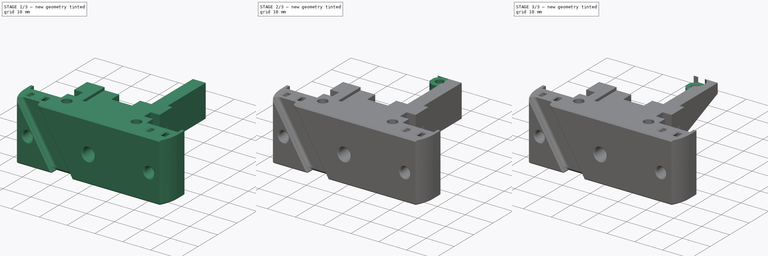
[diagram: build sequence overview — one tinted view per stage of 3, left to right]
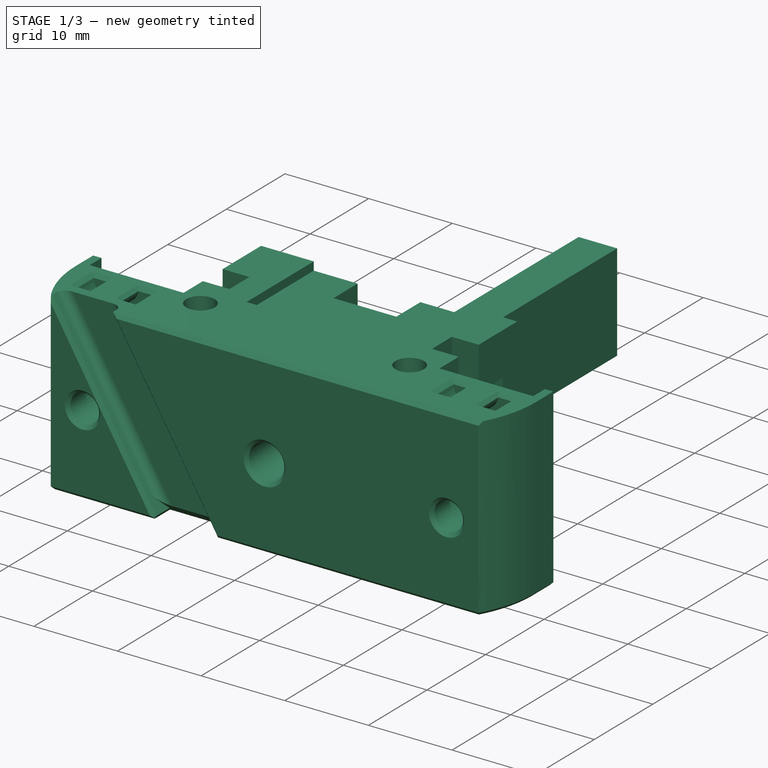
[diagram: stage 1 of 3 — iso view after this stage's code; geometry added in this stage tinted green]
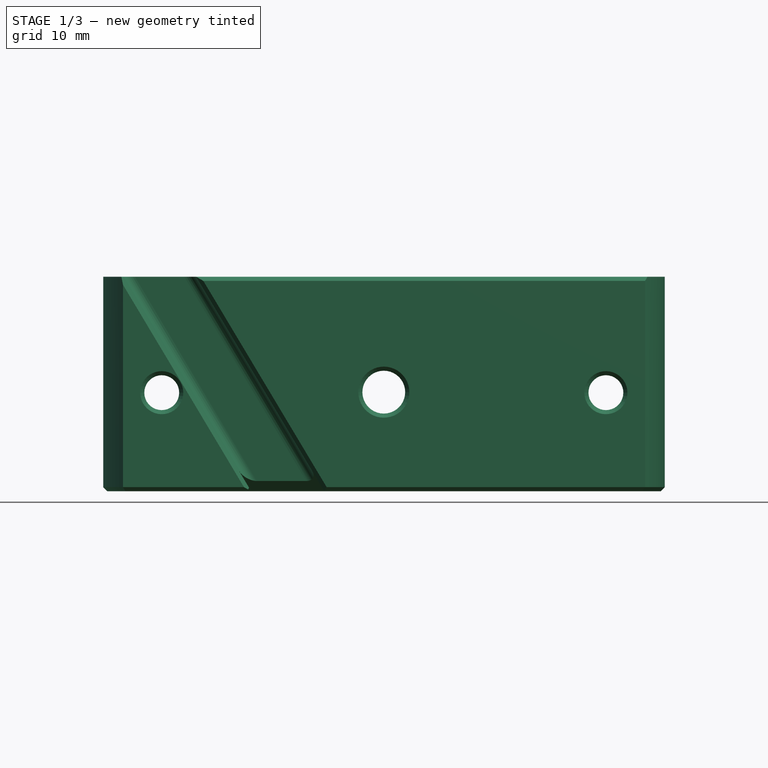
[diagram: stage 1 of 3 — front view after this stage's code; geometry added in this stage tinted green]
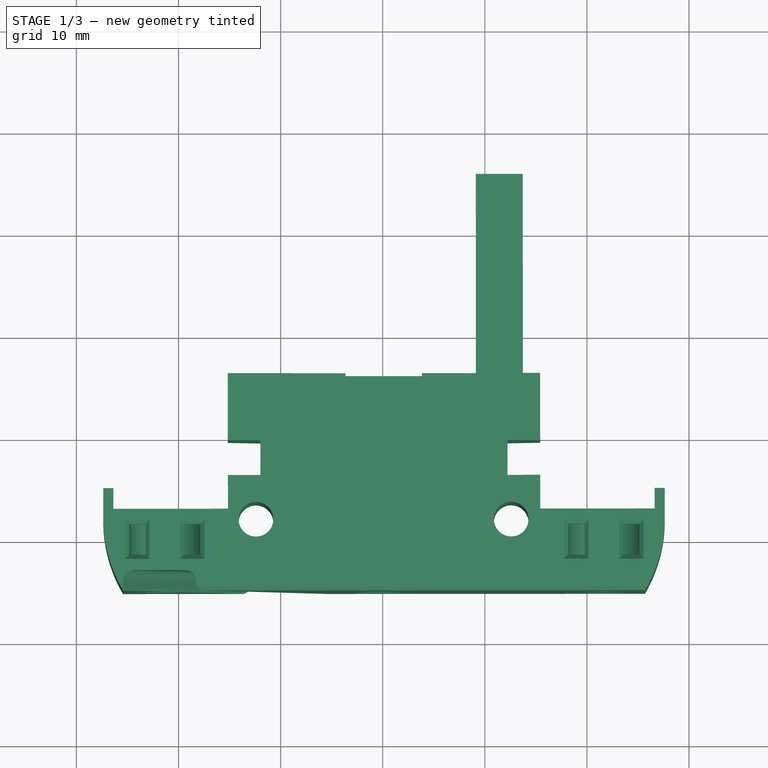
[diagram: stage 1 of 3 — top view after this stage's code; geometry added in this stage tinted green]
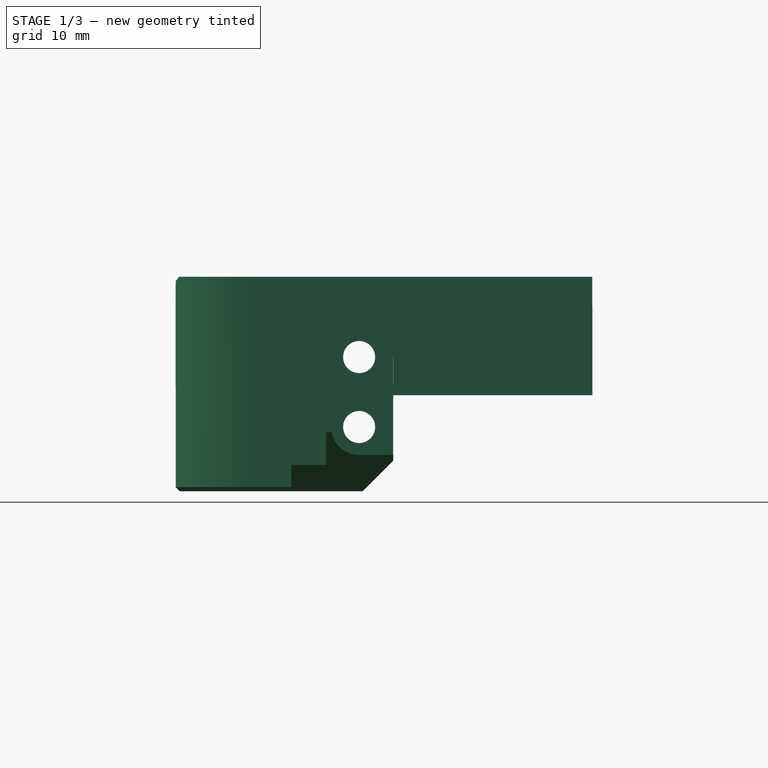
[diagram: stage 1 of 3 — right view after this stage's code; geometry added in this stage tinted green]
FCSTD DOCUMENT  (FreeCAD 1.0R39319 (Git))
Label: DragonBambu
License: All rights reserved
LicenseURL: https://en.wikipedia.org/wiki/All_rights_reserved
objects: Sketcher::SketchObject×5, PartDesign::Pocket×3, PartDesign::Pad×2, Part::Feature×1, Part::Refine×1, PartDesign::FeatureBase×1, PartDesign::Body×1
note: 30 computed .brp shape members not serialized (recipe doc carries the construction recipe); baked Part::Feature solids carry a one-line shape summary decoded from their .brp

FEATURE [Part::Feature] Bambu_Mount001
  shape: bbox 55 x 21.3 x 21 mm, 4954 faces, 0 solids (baked)
FEATURE [Part::Refine] Bambu_Mount002
  Source = -> Bambu_Mount001
FEATURE [PartDesign::FeatureBase] BaseFeature
  BaseFeature = -> Bambu_Mount002
  Suppressed = false
FEATURE [Sketcher::SketchObject] Sketch
  ArcFitTolerance = 1e-06
  AttachmentSupport = -> [BaseFeature]
  ExternalGeometry = -> [BaseFeature]
  FullyConstrained = true
  MakeInternals = false
  MapMode = 5
  Placement = pos=(0.0852624,-143.976,-0.00791922) rot=(-0.000209,0.707087,0.707126;3.14201rad)
  sketch-geometry (6):
    g0: LineSegment StartX=-339.042 StartY=21.009 StartZ=0 EndX=-343.642 EndY=21.009 EndZ=0
    g1: LineSegment StartX=-343.642 StartY=21.009 StartZ=0 EndX=-343.642 EndY=9.40899 EndZ=0
    g2: LineSegment StartX=-339.042 StartY=17.509 StartZ=0 EndX=-339.042 EndY=21.009 EndZ=0
    g3: LineSegment StartX=-343.642 StartY=9.40899 StartZ=0 EndX=-341.042 EndY=9.40899 EndZ=0
    g4: LineSegment StartX=-341.042 StartY=9.40899 StartZ=0 EndX=-341.042 EndY=17.509 EndZ=0
    g5: LineSegment StartX=-339.042 StartY=17.509 StartZ=0 EndX=-341.042 EndY=17.509 EndZ=0
  constraints (17):
    c: Coincident(g0,g1)
    c: Coincident(g2,g0)
    c: Horizontal(g0)
    c: Vertical(g1)
    c: Vertical(g2)
    c: Distance(g0) = 4.6
    c: Distance(g2) = 3.5
    c: Distance(g1) = 11.6
    c: Coincident(g3,g1)
    c: Horizontal(g3)
    c: Distance(g3) = 2.6
    c: Coincident(g4,g3)
    c: Vertical(g4)
    c: Horizontal(g5)
    c: Coincident(g4,g5)
    c: Coincident(g5,g2)
    c: Coincident(g0,g-3)
FEATURE [PartDesign::Pad] Pad  label="Arm"
  BaseFeature = -> BaseFeature
  Direction = (-0.000592199,1,5.50037e-05)
  Length = 19.5
  Length2 = 10
  Profile = -> Sketch
  ReferenceAxis = -> Sketch [N_Axis]
  Refine = true
  Suppressed = false
  Type = 0
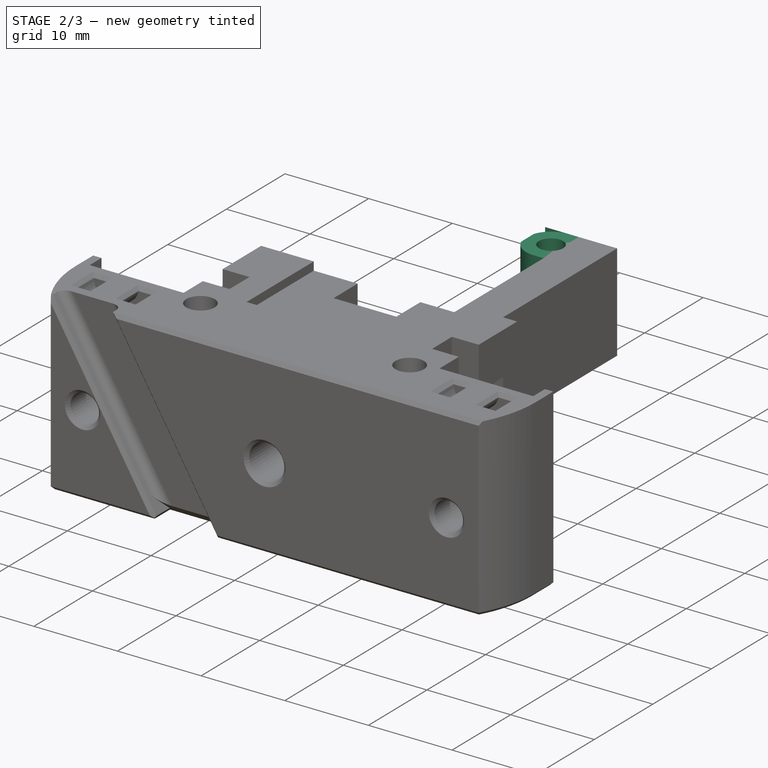
[diagram: stage 2 of 3 — iso view after this stage's code; geometry added in this stage tinted green]
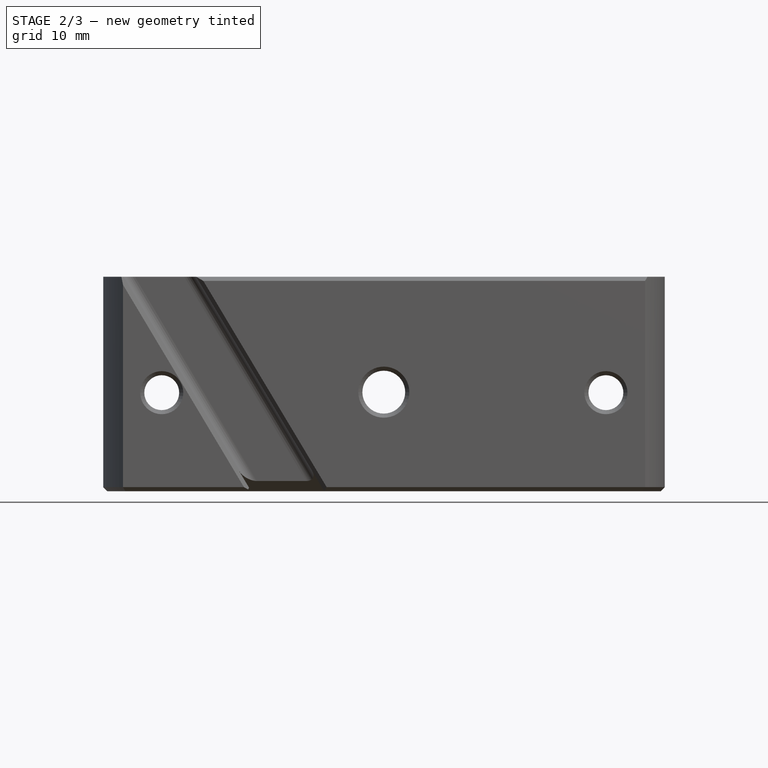
[diagram: stage 2 of 3 — front view after this stage's code; geometry added in this stage tinted green]
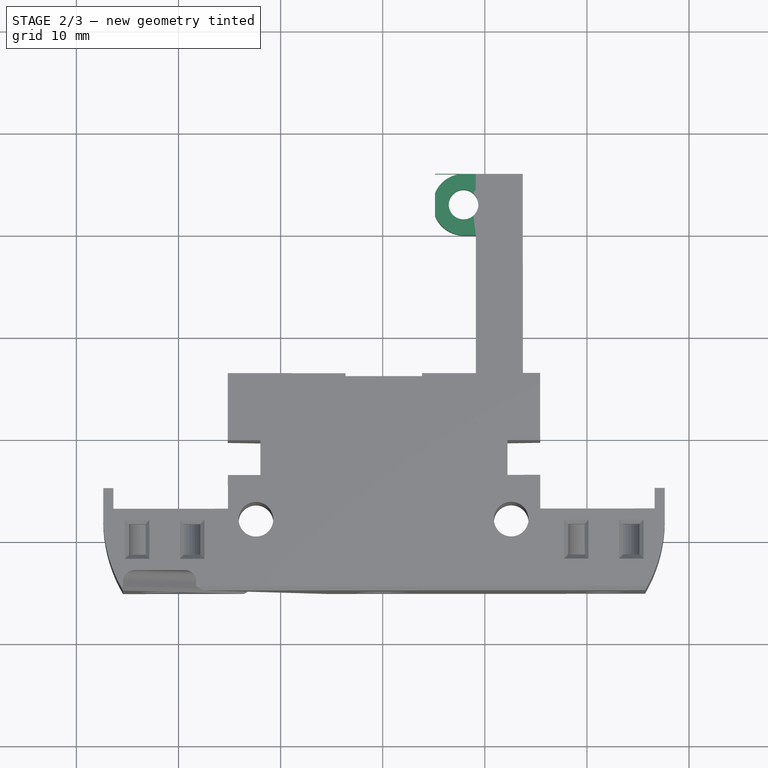
[diagram: stage 2 of 3 — top view after this stage's code; geometry added in this stage tinted green]
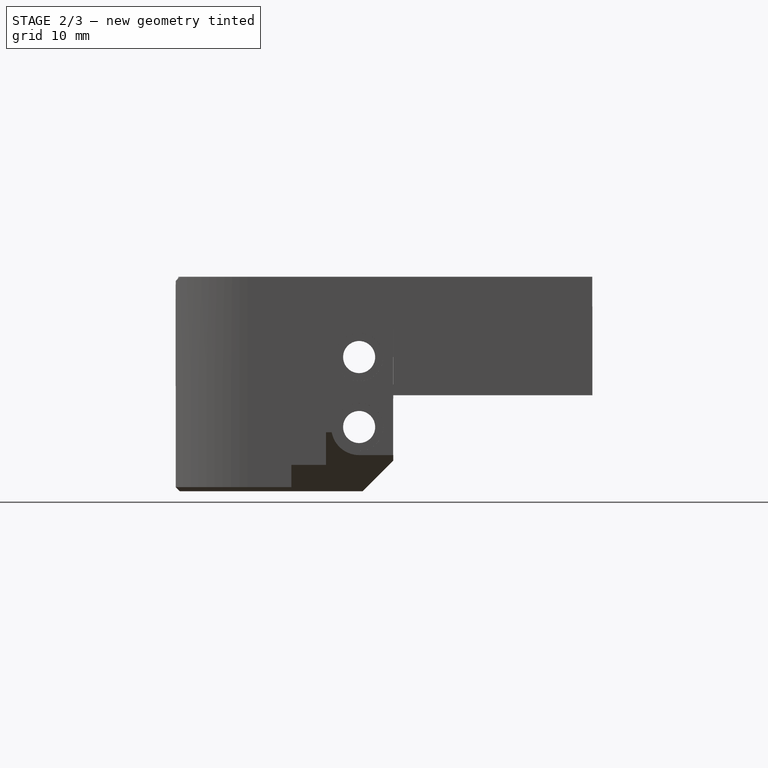
[diagram: stage 2 of 3 — right view after this stage's code; geometry added in this stage tinted green]
FEATURE [Sketcher::SketchObject] Sketch001
  ArcFitTolerance = 1e-06
  AttachmentSupport = -> [Pad]
  ExternalGeometry = -> [Pad]
  FullyConstrained = true
  MakeInternals = false
  MapMode = 5
  Placement = pos=(339.042,0.200781,1.10437e-05) rot=(0.577578,-0.577236,-0.577236;2.09405rad)
  sketch-geometry (4):
    g0: LineSegment StartX=124.477 StartY=21.0021 StartZ=0 EndX=124.477 EndY=17.5021 EndZ=0
    g1: LineSegment StartX=124.477 StartY=17.5021 StartZ=0 EndX=130.477 EndY=17.5021 EndZ=0
    g2: LineSegment StartX=130.477 StartY=17.5021 StartZ=0 EndX=130.477 EndY=21.0021 EndZ=0
    g3: LineSegment StartX=130.477 StartY=21.0021 StartZ=0 EndX=124.477 EndY=21.0021 EndZ=0
  constraints (10):
    c: Coincident(g0,g1)
    c: Coincident(g1,g2)
    c: Coincident(g2,g3)
    c: Coincident(g3,g0)
    c: Vertical(g2)
    c: Horizontal(g1)
    c: Horizontal(g3)
    c: Coincident(g0,g-3)
    c: Coincident(g0,g-3)
    c: Distance(g1) = 6
FEATURE [PartDesign::Pad] Pad001  label="Screw Access"
  BaseFeature = -> Pad
  Direction = (-1,-0.000592199,-3.25732e-08)
  Length = 4
  Length2 = 10
  Profile = -> Sketch001
  ReferenceAxis = -> Sketch001 [N_Axis]
  Refine = true
  Suppressed = false
  Type = 0
FEATURE [Sketcher::SketchObject] Sketch002
  ArcFitTolerance = 1e-06
  AttachmentSupport = -> [Pad001]
  ExternalGeometry = -> [Pad001]
  FullyConstrained = true
  MakeInternals = false
  MapMode = 5
  Placement = pos=(-6.84107e-07,9e-16,21.0021) rot=(0,-0.844705,0;0rad)
  sketch-geometry (8):
    g0: Circle CenterX=337.916 CenterY=-127.277 CenterZ=0 NormalX=0 NormalY=0 NormalZ=1 AngleXU=0 Radius=1.45
    g1: LineSegment [constr] StartX=337.916 StartY=-127.277 StartZ=0 EndX=339.116 EndY=-124.276 EndZ=0
    g2: LineSegment [constr] StartX=337.916 StartY=-127.277 StartZ=0 EndX=339.12 EndY=-130.276 EndZ=0
    g3: ArcOfCircle CenterX=337.916 CenterY=-127.277 CenterZ=0 NormalX=0 NormalY=0 NormalZ=1 AngleXU=0 Radius=2.9999 StartAngle=1.57198 EndAngle=4.71239
    g4: LineSegment [constr] StartX=337.916 StartY=-127.277 StartZ=0 EndX=337.916 EndY=-130.277 EndZ=0
    g5: LineSegment StartX=337.912 StartY=-124.277 StartZ=0 EndX=334.916 EndY=-124.281 EndZ=0
    g6: LineSegment StartX=337.916 StartY=-130.277 StartZ=0 EndX=334.916 EndY=-130.277 EndZ=0
    g7: LineSegment StartX=334.916 StartY=-130.277 StartZ=0 EndX=334.916 EndY=-124.281 EndZ=0
  constraints (20):
    c: Coincident(g1,g0)
    c: Coincident(g1,g-3)
    c: Coincident(g2,g0)
    c: Coincident(g2,g-3)
    c: Equal(g2,g1)
    c: DistanceX(g0,g1) = 1.2
    c: Diameter(g0) = 2.9
    c: Coincident(g3,g0)
    c: PointOnObject(g3,g-4)
    c: Coincident(g4,g0)
    c: Vertical(g4)
    c: PointOnObject(g4,g-5)
    c: Coincident(g3,g4)
    c: Tangent(g5,g3) = -1.5708
    c: Horizontal(g6)
    c: Coincident(g7,g6)
    c: Vertical(g7)
    c: Coincident(g7,g5)
    c: Tangent(g7,g3)
    c: Coincident(g6,g3)
FEATURE [PartDesign::Pocket] Pocket  label="Screw Hole"
  BaseFeature = -> Pad001
  Direction = (3.25732e-08,0,-1)
  Length = 20
  Length2 = 5
  Profile = -> Sketch002
  ReferenceAxis = -> Sketch002 [N_Axis]
  Refine = true
  Suppressed = false
  Type = 1
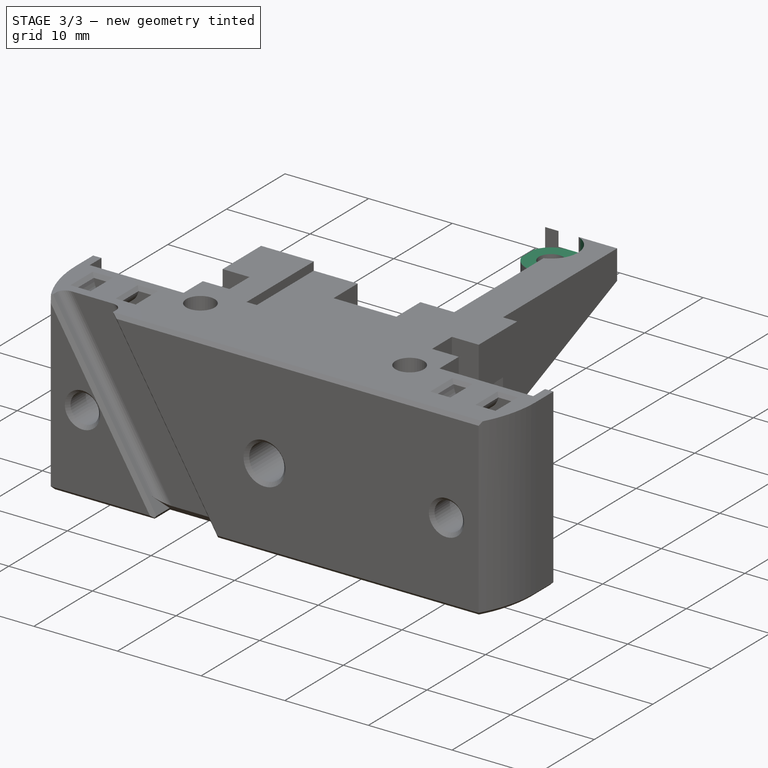
[diagram: stage 3 of 3 — iso view after this stage's code; geometry added in this stage tinted green]
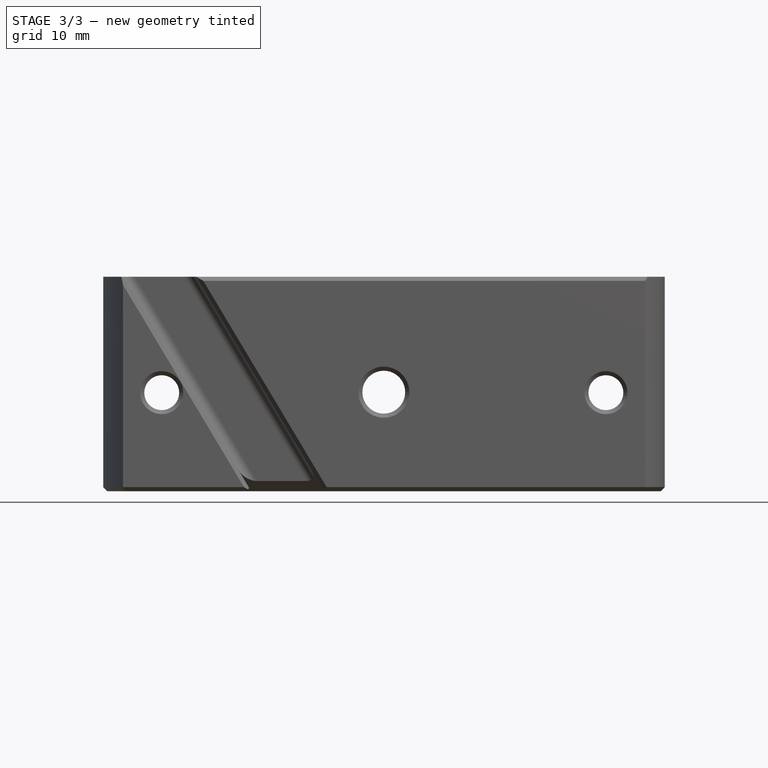
[diagram: stage 3 of 3 — front view after this stage's code; geometry added in this stage tinted green]
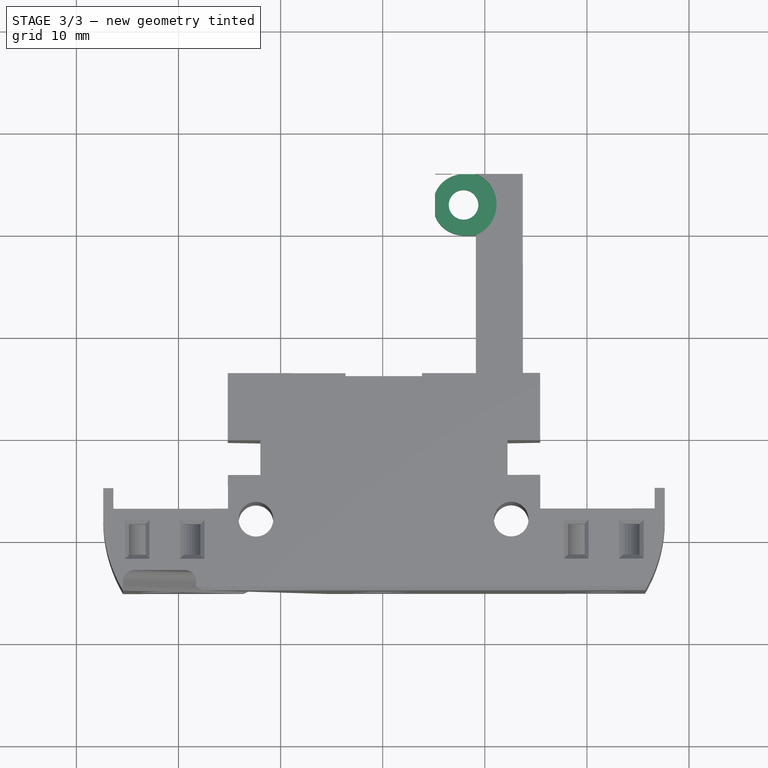
[diagram: stage 3 of 3 — top view after this stage's code; geometry added in this stage tinted green]
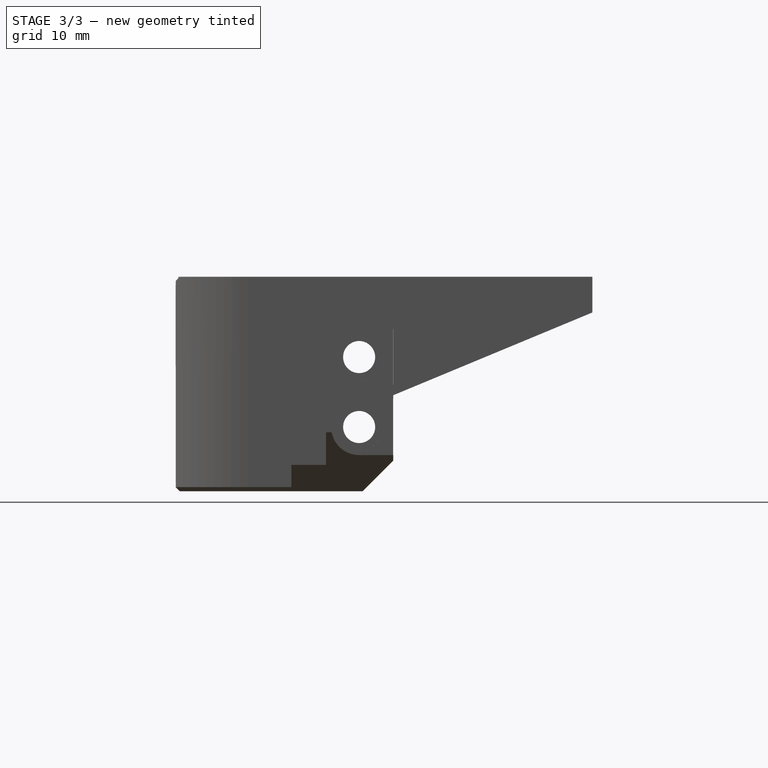
[diagram: stage 3 of 3 — right view after this stage's code; geometry added in this stage tinted green]
FEATURE [Sketcher::SketchObject] Sketch003
  ArcFitTolerance = 1e-06
  AttachmentSupport = -> [Pocket]
  ExternalGeometry = -> [Pocket]
  FullyConstrained = true
  MakeInternals = false
  MapMode = 5
  Placement = pos=(-6.84107e-07,9e-16,21.0021) rot=(0,-0.844705,0;0rad)
  sketch-geometry (1):
    g0: Circle CenterX=337.916 CenterY=-127.277 CenterZ=0 NormalX=0 NormalY=0 NormalZ=1 AngleXU=0 Radius=3.23167
  constraints (2):
    c: Coincident(g0,g-3)
    c: PointOnObject(g-4,g0)
FEATURE [PartDesign::Pocket] Pocket001  label="Screw Recess"
  BaseFeature = -> Pocket
  Direction = (3.25732e-08,0,-1)
  Length = 1.7
  Length2 = 5
  Profile = -> Sketch003
  ReferenceAxis = -> Sketch003 [N_Axis]
  Refine = true
  Suppressed = false
  Type = 0
FEATURE [Sketcher::SketchObject] Sketch004
  ArcFitTolerance = 1e-06
  AttachmentSupport = -> [Pocket001]
  ExternalGeometry = -> [Pocket001]
  FullyConstrained = true
  MakeInternals = false
  MapMode = 5
  Placement = pos=(341.042,0.201965,1.11088e-05) rot=(0.577578,-0.577236,-0.577236;2.09405rad)
  sketch-geometry (3):
    g0: LineSegment StartX=124.477 StartY=17.5021 StartZ=0 EndX=143.976 EndY=9.40107 EndZ=0
    g1: LineSegment StartX=143.976 StartY=9.40107 StartZ=0 EndX=124.476 EndY=9.40214 EndZ=0
    g2: LineSegment StartX=124.476 StartY=9.40214 StartZ=0 EndX=124.477 EndY=17.5021 EndZ=0
  constraints (6):
    c: Coincident(g0,g-4)
    c: Coincident(g0,g-3)
    c: Coincident(g1,g-3)
    c: Coincident(g1,g-4)
    c: Coincident(g2,g-4)
    c: Coincident(g2,g-4)
FEATURE [PartDesign::Pocket] Pocket002  label="Column Reinforcement"
  BaseFeature = -> Pocket001
  Direction = (1,0.000592199,3.25732e-08)
  Length = 5
  Length2 = 5
  Profile = -> Sketch004
  ReferenceAxis = -> Sketch004 [N_Axis]
  Refine = true
  Suppressed = false
  Type = 1
FEATURE [PartDesign::Body] Body
  AllowCompound = false
  BaseFeature = -> Bambu_Mount002
  Group = -> [BaseFeature,Sketch,Pad,Sketch001,Pad001,Sketch002,Pocket,Sketch003,Pocket001,Sketch004,Pocket002]
  Origin = -> Origin
  Tip = -> Pocket002
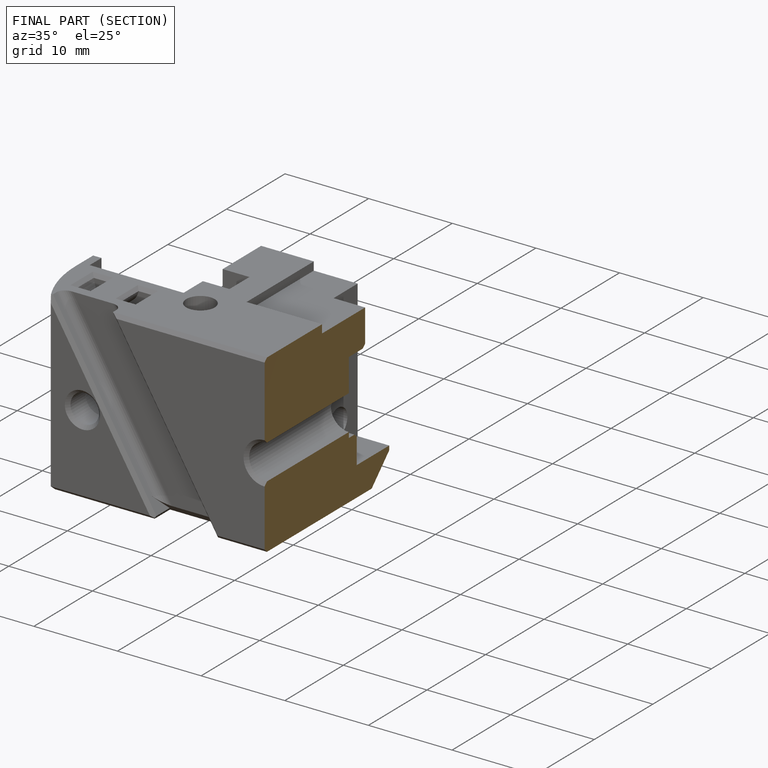
[diagram: finished part — half-section view (interior)]
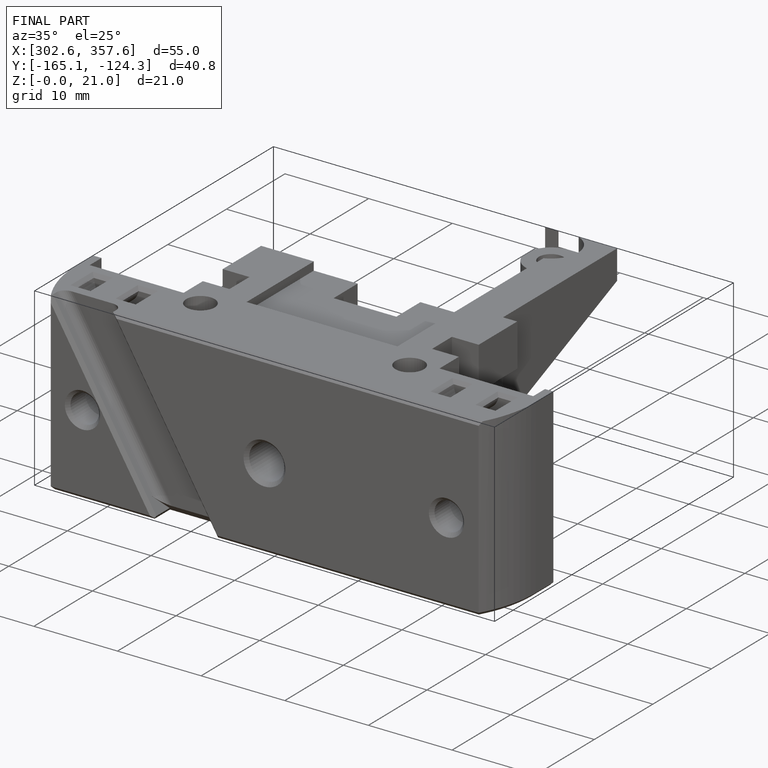
[diagram: finished part — iso view with bounding-box wireframe]
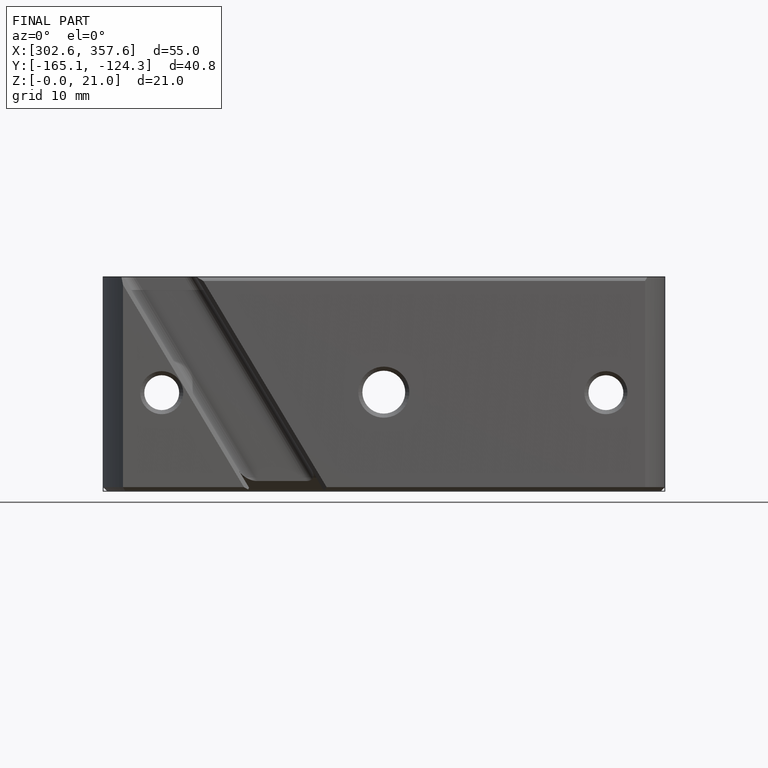
[diagram: finished part — front view with bounding-box wireframe]
